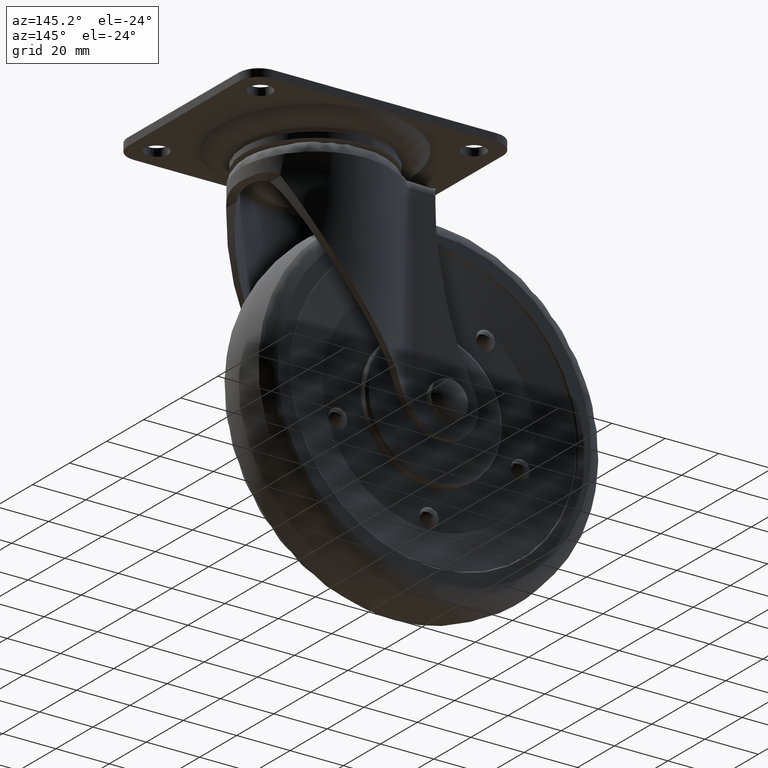
[diagram: clean part render]
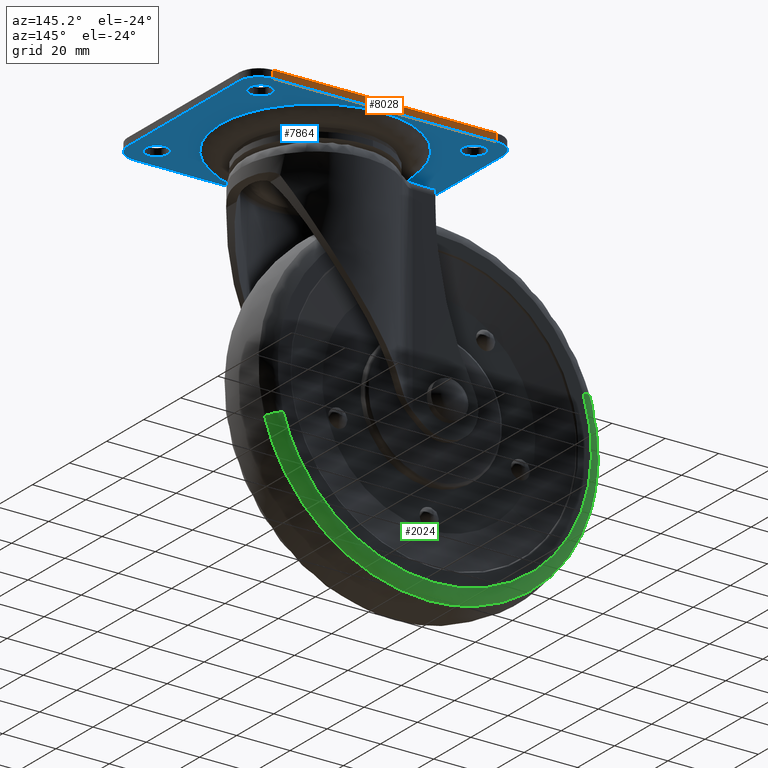
[diagram: same view with three faces highlighted in distinct colors, each labeled with its STEP entity id]
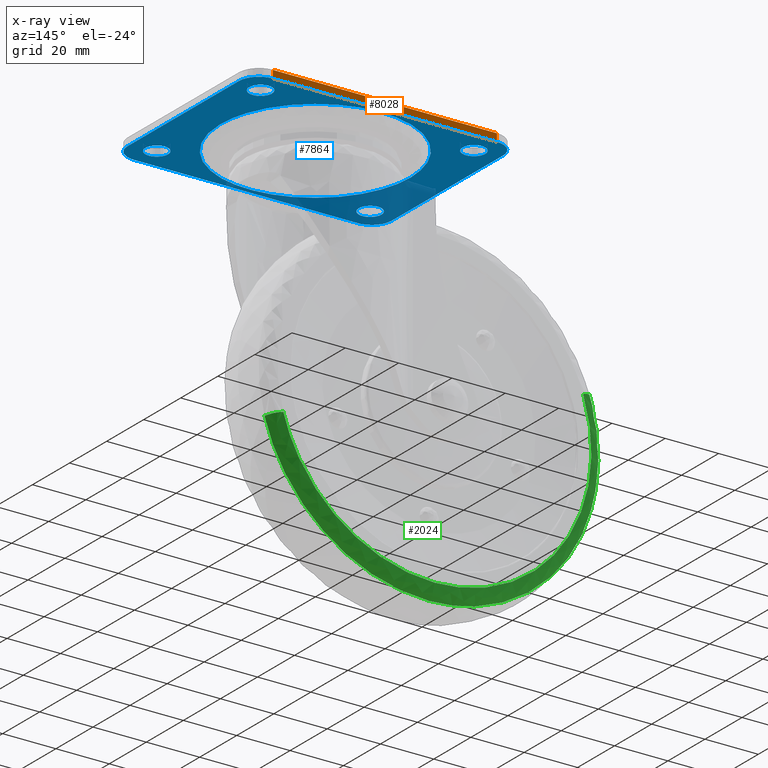
[diagram: x-ray of the same camera — body ghosted, the three highlighted faces saturated]
A machine part, auxiliary view with three faces highlighted in distinct colors.
The next image is the same camera in x-ray (body ghosted, the three faces saturated) — at least one of them is partly hidden behind the body in this view.
Their STEP definitions:

[orange] entity #8028 — the highlighted face is a freeform B-spline surface patch.
#7618=CARTESIAN_POINT('',(42.0,37.500000000000000,0.0));
#7619=VERTEX_POINT('',#7618);
#7620=CARTESIAN_POINT('',(-42.0,37.500000000000000,0.0));
#7621=VERTEX_POINT('',#7620);
#7622=CARTESIAN_POINT('',(42.0,37.500000000000000,0.0));
#7623=CARTESIAN_POINT('',(-42.0,37.500000000000000,0.0));
#7624=QUASI_UNIFORM_CURVE('',1,(#7622,#7623),.UNSPECIFIED.,.F.,.U.);
#7625=EDGE_CURVE('',#7619,#7621,#7624,.T.);
#7744=CARTESIAN_POINT('',(42.0,37.500000000000000,-2.899614999999910));
#7745=VERTEX_POINT('',#7744);
#7746=CARTESIAN_POINT('',(-42.0,37.500000000000000,-2.899614999999910));
#7747=VERTEX_POINT('',#7746);
#7748=CARTESIAN_POINT('',(42.0,37.500000000000000,-2.899614999999910));
#7749=CARTESIAN_POINT('',(-42.0,37.500000000000000,-2.899614999999910));
#7750=QUASI_UNIFORM_CURVE('',1,(#7748,#7749),.UNSPECIFIED.,.F.,.U.);
#7751=EDGE_CURVE('',#7745,#7747,#7750,.T.);
#7886=CARTESIAN_POINT('',(42.0,37.500000000000000,-2.899614999999910));
#7887=CARTESIAN_POINT('',(42.0,37.500000000000000,0.0));
#7888=QUASI_UNIFORM_CURVE('',1,(#7886,#7887),.UNSPECIFIED.,.F.,.U.);
#7889=EDGE_CURVE('',#7745,#7619,#7888,.T.);
#8007=CARTESIAN_POINT('',(-42.0,37.500000000000000,-2.899614999999910));
#8008=CARTESIAN_POINT('',(-42.0,37.500000000000000,0.0));
#8009=QUASI_UNIFORM_CURVE('',1,(#8007,#8008),.UNSPECIFIED.,.F.,.U.);
#8010=EDGE_CURVE('',#7747,#7621,#8009,.T.);
#8017=CARTESIAN_POINT('',(-46.195799837191707,37.500000000000000,-3.044450818068911));
#8018=CARTESIAN_POINT('',(-46.195799837191707,37.500000000000000,0.144835843993579));
#8019=CARTESIAN_POINT('',(46.195802090247277,37.500000000000000,-3.044450818068911));
#8020=CARTESIAN_POINT('',(46.195802090247277,37.500000000000000,0.144835843993579));
#8021=B_SPLINE_SURFACE_WITH_KNOTS('',1,1,((#8017,#8019),(#8018,#8020)),.UNSPECIFIED.,.F.,.F.,.U.,(2,2),(2,2),(0.0,3.189286662062490),(0.0,92.391601927438998),.UNSPECIFIED.);
#8022=ORIENTED_EDGE('',*,*,#7625,.F.);
#8023=ORIENTED_EDGE('',*,*,#7889,.F.);
#8024=ORIENTED_EDGE('',*,*,#7751,.T.);
#8025=ORIENTED_EDGE('',*,*,#8010,.T.);
#8026=EDGE_LOOP('',(#8022,#8023,#8024,#8025));
#8027=FACE_OUTER_BOUND('',#8026,.T.);
#8028=ADVANCED_FACE('',(#8027),#8021,.T.);

[blue] entity #7864 — the highlighted face is a freeform B-spline surface patch.
#5863=CARTESIAN_POINT('',(-39.740543706434572,32.242072893259767,-2.899614999999910));
#5864=VERTEX_POINT('',#5863);
#5870=CARTESIAN_POINT('',(-35.750000000000007,28.0,-2.899614999999910));
#5871=VERTEX_POINT('',#5870);
#5872=CARTESIAN_POINT('',(-35.750000000000007,28.0,-2.899614999999910));
#5873=CARTESIAN_POINT('',(-35.750000000000000,31.998000783325136,-2.899614999999910));
#5874=CARTESIAN_POINT('',(-39.740543706434572,32.242072893259767,-2.899614999999911));
#5882=(BOUNDED_CURVE()B_SPLINE_CURVE(2,(#5872,#5873,#5874),.UNSPECIFIED.,.F.,.U.)B_SPLINE_CURVE_WITH_KNOTS((3,3),(0.500000000000000,0.739332962197853),.UNSPECIFIED.)CURVE()GEOMETRIC_REPRESENTATION_ITEM()RATIONAL_B_SPLINE_CURVE((1.0,0.719603993334849,0.976072041578655))REPRESENTATION_ITEM(''));
#5883=EDGE_CURVE('',#5871,#5864,#5882,.T.);
#5885=CARTESIAN_POINT('',(-40.501645497471713,23.779709512975870,-2.899614999999911));
#5886=VERTEX_POINT('',#5885);
#5887=CARTESIAN_POINT('',(-40.501645497471706,23.779709512975867,-2.899614999999911));
#5888=CARTESIAN_POINT('',(-40.251702508703019,23.750000000000004,-2.899614999999910));
#5889=CARTESIAN_POINT('',(-40.0,23.750000000000000,-2.899614999999910));
#5890=CARTESIAN_POINT('',(-35.750000000000007,23.750000000000011,-2.899614999999911));
#5891=CARTESIAN_POINT('',(-35.750000000000007,28.0,-2.899614999999910));
#5899=(BOUNDED_CURVE()B_SPLINE_CURVE(2,(#5887,#5888,#5889,#5890,#5891),.UNSPECIFIED.,.F.,.U.)B_SPLINE_CURVE_WITH_KNOTS((3,2,3),(0.229562473501189,0.250000000000000,0.500000000000000),.UNSPECIFIED.)CURVE()GEOMETRIC_REPRESENTATION_ITEM()RATIONAL_B_SPLINE_CURVE((0.956026754159552,0.976055948316712,1.0,0.707106781186548,1.0))REPRESENTATION_ITEM(''));
#5900=EDGE_CURVE('',#5886,#5871,#5899,.T.);
#5944=CARTESIAN_POINT('',(-44.250000000000000,28.0,-2.899614999999910));
#5945=VERTEX_POINT('',#5944);
#5946=CARTESIAN_POINT('',(-44.250000000000000,28.0,-2.899614999999910));
#5947=CARTESIAN_POINT('',(-44.250000000000000,24.225258265031837,-2.899614999999911));
#5948=CARTESIAN_POINT('',(-40.501645497471721,23.779709512975874,-2.899614999999911));
#5956=(BOUNDED_CURVE()B_SPLINE_CURVE(2,(#5946,#5947,#5948),.UNSPECIFIED.,.F.,.U.)B_SPLINE_CURVE_WITH_KNOTS((3,3),(0.0,0.229562473501189),.UNSPECIFIED.)CURVE()GEOMETRIC_REPRESENTATION_ITEM()RATIONAL_B_SPLINE_CURVE((1.0,0.731050832869836,0.956026754159552))REPRESENTATION_ITEM(''));
#5957=EDGE_CURVE('',#5945,#5886,#5956,.T.);
#5959=CARTESIAN_POINT('',(-39.740543706434572,32.242072893259767,-2.899614999999910));
#5960=CARTESIAN_POINT('',(-39.870150755437180,32.249999999999993,-2.899614999999910));
#5961=CARTESIAN_POINT('',(-40.0,32.250000000000000,-2.899614999999910));
#5962=CARTESIAN_POINT('',(-44.250000000000000,32.250000000000000,-2.899614999999911));
#5963=CARTESIAN_POINT('',(-44.250000000000000,28.0,-2.899614999999910));
#5971=(BOUNDED_CURVE()B_SPLINE_CURVE(2,(#5959,#5960,#5961,#5962,#5963),.UNSPECIFIED.,.F.,.U.)B_SPLINE_CURVE_WITH_KNOTS((3,2,3),(0.739332962197853,0.750000000000000,1.0),.UNSPECIFIED.)CURVE()GEOMETRIC_REPRESENTATION_ITEM()RATIONAL_B_SPLINE_CURVE((0.976072041578655,0.987502787851698,1.0,0.707106781186548,1.0))REPRESENTATION_ITEM(''));
#5972=EDGE_CURVE('',#5864,#5945,#5971,.T.);
#6265=CARTESIAN_POINT('',(40.259456293565442,32.242072893259767,-2.899614999999910));
#6266=VERTEX_POINT('',#6265);
#6272=CARTESIAN_POINT('',(44.250000000000000,28.0,-2.899614999999910));
#6273=VERTEX_POINT('',#6272);
#6274=CARTESIAN_POINT('',(44.250000000000000,28.0,-2.899614999999910));
#6275=CARTESIAN_POINT('',(44.250000000000000,31.998000783325136,-2.899614999999910));
#6276=CARTESIAN_POINT('',(40.259456293565435,32.242072893259767,-2.899614999999911));
#6284=(BOUNDED_CURVE()B_SPLINE_CURVE(2,(#6274,#6275,#6276),.UNSPECIFIED.,.F.,.U.)B_SPLINE_CURVE_WITH_KNOTS((3,3),(0.500000000000000,0.739332962197853),.UNSPECIFIED.)CURVE()GEOMETRIC_REPRESENTATION_ITEM()RATIONAL_B_SPLINE_CURVE((1.0,0.719603993334849,0.976072041578655))REPRESENTATION_ITEM(''));
#6285=EDGE_CURVE('',#6273,#6266,#6284,.T.);
#6287=CARTESIAN_POINT('',(39.498354502528287,23.779709512975870,-2.899614999999910));
#6288=VERTEX_POINT('',#6287);
#6289=CARTESIAN_POINT('',(39.498354502528287,23.779709512975867,-2.899614999999910));
#6290=CARTESIAN_POINT('',(39.748297491296981,23.750000000000004,-2.899614999999909));
#6291=CARTESIAN_POINT('',(40.0,23.750000000000000,-2.899614999999910));
#6292=CARTESIAN_POINT('',(44.250000000000000,23.750000000000011,-2.899614999999911));
#6293=CARTESIAN_POINT('',(44.250000000000000,28.0,-2.899614999999910));
#6301=(BOUNDED_CURVE()B_SPLINE_CURVE(2,(#6289,#6290,#6291,#6292,#6293),.UNSPECIFIED.,.F.,.U.)B_SPLINE_CURVE_WITH_KNOTS((3,2,3),(0.229562473501189,0.250000000000000,0.500000000000000),.UNSPECIFIED.)CURVE()GEOMETRIC_REPRESENTATION_ITEM()RATIONAL_B_SPLINE_CURVE((0.956026754159552,0.976055948316712,1.0,0.707106781186548,1.0))REPRESENTATION_ITEM(''));
#6302=EDGE_CURVE('',#6288,#6273,#6301,.T.);
#6346=CARTESIAN_POINT('',(35.750000000000007,28.0,-2.899614999999910));
#6347=VERTEX_POINT('',#6346);
#6348=CARTESIAN_POINT('',(35.750000000000007,28.0,-2.899614999999910));
#6349=CARTESIAN_POINT('',(35.750000000000014,24.225258265031830,-2.899614999999910));
#6350=CARTESIAN_POINT('',(39.498354502528287,23.779709512975867,-2.899614999999910));
#6358=(BOUNDED_CURVE()B_SPLINE_CURVE(2,(#6348,#6349,#6350),.UNSPECIFIED.,.F.,.U.)B_SPLINE_CURVE_WITH_KNOTS((3,3),(0.0,0.229562473501189),.UNSPECIFIED.)CURVE()GEOMETRIC_REPRESENTATION_ITEM()RATIONAL_B_SPLINE_CURVE((1.0,0.731050832869836,0.956026754159552))REPRESENTATION_ITEM(''));
#6359=EDGE_CURVE('',#6347,#6288,#6358,.T.);
#6361=CARTESIAN_POINT('',(40.259456293565435,32.242072893259767,-2.899614999999910));
#6362=CARTESIAN_POINT('',(40.129849244562806,32.249999999999993,-2.899614999999910));
#6363=CARTESIAN_POINT('',(40.0,32.250000000000000,-2.899614999999910));
#6364=CARTESIAN_POINT('',(35.750000000000007,32.250000000000000,-2.899614999999911));
#6365=CARTESIAN_POINT('',(35.750000000000007,28.0,-2.899614999999910));
#6373=(BOUNDED_CURVE()B_SPLINE_CURVE(2,(#6361,#6362,#6363,#6364,#6365),.UNSPECIFIED.,.F.,.U.)B_SPLINE_CURVE_WITH_KNOTS((3,2,3),(0.739332962197853,0.750000000000000,1.0),.UNSPECIFIED.)CURVE()GEOMETRIC_REPRESENTATION_ITEM()RATIONAL_B_SPLINE_CURVE((0.976072041578655,0.987502787851698,1.0,0.707106781186548,1.0))REPRESENTATION_ITEM(''));
#6374=EDGE_CURVE('',#6266,#6347,#6373,.T.);
#6451=CARTESIAN_POINT('',(40.259456293565442,-23.757927106740230,-2.899614999999910));
#6452=VERTEX_POINT('',#6451);
#6458=CARTESIAN_POINT('',(44.250000000000000,-28.0,-2.899614999999910));
#6459=VERTEX_POINT('',#6458);
#6460=CARTESIAN_POINT('',(44.250000000000000,-28.0,-2.899614999999910));
#6461=CARTESIAN_POINT('',(44.250000000000000,-24.001999216674875,-2.899614999999910));
#6462=CARTESIAN_POINT('',(40.259456293565435,-23.757927106740230,-2.899614999999911));
#6470=(BOUNDED_CURVE()B_SPLINE_CURVE(2,(#6460,#6461,#6462),.UNSPECIFIED.,.F.,.U.)B_SPLINE_CURVE_WITH_KNOTS((3,3),(0.500000000000000,0.739332962197853),.UNSPECIFIED.)CURVE()GEOMETRIC_REPRESENTATION_ITEM()RATIONAL_B_SPLINE_CURVE((1.0,0.719603993334849,0.976072041578655))REPRESENTATION_ITEM(''));
#6471=EDGE_CURVE('',#6459,#6452,#6470,.T.);
#6473=CARTESIAN_POINT('',(39.498354502528287,-32.220290487024130,-2.899614999999910));
#6474=VERTEX_POINT('',#6473);
#6475=CARTESIAN_POINT('',(39.498354502528287,-32.220290487024130,-2.899614999999910));
#6476=CARTESIAN_POINT('',(39.748297491296981,-32.250000000000014,-2.899614999999910));
#6477=CARTESIAN_POINT('',(40.0,-32.250000000000000,-2.899614999999910));
#6478=CARTESIAN_POINT('',(44.250000000000000,-32.250000000000000,-2.899614999999911));
#6479=CARTESIAN_POINT('',(44.250000000000000,-28.0,-2.899614999999910));
#6487=(BOUNDED_CURVE()B_SPLINE_CURVE(2,(#6475,#6476,#6477,#6478,#6479),.UNSPECIFIED.,.F.,.U.)B_SPLINE_CURVE_WITH_KNOTS((3,2,3),(0.229562473501188,0.250000000000000,0.500000000000000),.UNSPECIFIED.)CURVE()GEOMETRIC_REPRESENTATION_ITEM()RATIONAL_B_SPLINE_CURVE((0.956026754159552,0.976055948316711,1.0,0.707106781186548,1.0))REPRESENTATION_ITEM(''));
#6488=EDGE_CURVE('',#6474,#6459,#6487,.T.);
#6532=CARTESIAN_POINT('',(35.750000000000007,-28.0,-2.899614999999910));
#6533=VERTEX_POINT('',#6532);
#6534=CARTESIAN_POINT('',(35.750000000000007,-28.0,-2.899614999999910));
#6535=CARTESIAN_POINT('',(35.750000000000014,-31.774741734968156,-2.899614999999910));
#6536=CARTESIAN_POINT('',(39.498354502528287,-32.220290487024130,-2.899614999999910));
#6544=(BOUNDED_CURVE()B_SPLINE_CURVE(2,(#6534,#6535,#6536),.UNSPECIFIED.,.F.,.U.)B_SPLINE_CURVE_WITH_KNOTS((3,3),(0.0,0.229562473501188),.UNSPECIFIED.)CURVE()GEOMETRIC_REPRESENTATION_ITEM()RATIONAL_B_SPLINE_CURVE((1.0,0.731050832869836,0.956026754159551))REPRESENTATION_ITEM(''));
#6545=EDGE_CURVE('',#6533,#6474,#6544,.T.);
#6547=CARTESIAN_POINT('',(40.259456293565442,-23.757927106740230,-2.899614999999910));
#6548=CARTESIAN_POINT('',(40.129849244562813,-23.750000000000000,-2.899614999999910));
#6549=CARTESIAN_POINT('',(40.0,-23.750000000000000,-2.899614999999910));
#6550=CARTESIAN_POINT('',(35.750000000000007,-23.750000000000011,-2.899614999999911));
#6551=CARTESIAN_POINT('',(35.750000000000007,-28.0,-2.899614999999910));
#6559=(BOUNDED_CURVE()B_SPLINE_CURVE(2,(#6547,#6548,#6549,#6550,#6551),.UNSPECIFIED.,.F.,.U.)B_SPLINE_CURVE_WITH_KNOTS((3,2,3),(0.739332962197853,0.750000000000000,1.0),.UNSPECIFIED.)CURVE()GEOMETRIC_REPRESENTATION_ITEM()RATIONAL_B_SPLINE_CURVE((0.976072041578654,0.987502787851698,1.0,0.707106781186548,1.0))REPRESENTATION_ITEM(''));
#6560=EDGE_CURVE('',#6452,#6533,#6559,.T.);
#6637=CARTESIAN_POINT('',(-39.740543706434572,-23.757927106740230,-2.899614999999910));
#6638=VERTEX_POINT('',#6637);
#6644=CARTESIAN_POINT('',(-35.750000000000007,-28.0,-2.899614999999910));
#6645=VERTEX_POINT('',#6644);
#6646=CARTESIAN_POINT('',(-35.750000000000007,-28.0,-2.899614999999910));
#6647=CARTESIAN_POINT('',(-35.750000000000000,-24.001999216674875,-2.899614999999910));
#6648=CARTESIAN_POINT('',(-39.740543706434572,-23.757927106740230,-2.899614999999911));
#6656=(BOUNDED_CURVE()B_SPLINE_CURVE(2,(#6646,#6647,#6648),.UNSPECIFIED.,.F.,.U.)B_SPLINE_CURVE_WITH_KNOTS((3,3),(0.500000000000000,0.739332962197853),.UNSPECIFIED.)CURVE()GEOMETRIC_REPRESENTATION_ITEM()RATIONAL_B_SPLINE_CURVE((1.0,0.719603993334849,0.976072041578655))REPRESENTATION_ITEM(''));
#6657=EDGE_CURVE('',#6645,#6638,#6656,.T.);
#6659=CARTESIAN_POINT('',(-40.501645497471713,-32.220290487024130,-2.899614999999910));
#6660=VERTEX_POINT('',#6659);
#6661=CARTESIAN_POINT('',(-40.501645497471706,-32.220290487024130,-2.899614999999910));
#6662=CARTESIAN_POINT('',(-40.251702508703019,-32.250000000000007,-2.899614999999909));
#6663=CARTESIAN_POINT('',(-40.0,-32.250000000000000,-2.899614999999910));
#6664=CARTESIAN_POINT('',(-35.750000000000007,-32.250000000000000,-2.899614999999911));
#6665=CARTESIAN_POINT('',(-35.750000000000007,-28.0,-2.899614999999910));
#6673=(BOUNDED_CURVE()B_SPLINE_CURVE(2,(#6661,#6662,#6663,#6664,#6665),.UNSPECIFIED.,.F.,.U.)B_SPLINE_CURVE_WITH_KNOTS((3,2,3),(0.229562473501189,0.250000000000000,0.500000000000000),.UNSPECIFIED.)CURVE()GEOMETRIC_REPRESENTATION_ITEM()RATIONAL_B_SPLINE_CURVE((0.956026754159552,0.976055948316712,1.0,0.707106781186548,1.0))REPRESENTATION_ITEM(''));
#6674=EDGE_CURVE('',#6660,#6645,#6673,.T.);
#6718=CARTESIAN_POINT('',(-44.250000000000000,-28.0,-2.899614999999910));
#6719=VERTEX_POINT('',#6718);
#6720=CARTESIAN_POINT('',(-44.250000000000000,-28.0,-2.899614999999910));
#6721=CARTESIAN_POINT('',(-44.250000000000007,-31.774741734968170,-2.899614999999910));
#6722=CARTESIAN_POINT('',(-40.501645497471706,-32.220290487024130,-2.899614999999910));
#6730=(BOUNDED_CURVE()B_SPLINE_CURVE(2,(#6720,#6721,#6722),.UNSPECIFIED.,.F.,.U.)B_SPLINE_CURVE_WITH_KNOTS((3,3),(0.0,0.229562473501189),.UNSPECIFIED.)CURVE()GEOMETRIC_REPRESENTATION_ITEM()RATIONAL_B_SPLINE_CURVE((1.0,0.731050832869836,0.956026754159552))REPRESENTATION_ITEM(''));
#6731=EDGE_CURVE('',#6719,#6660,#6730,.T.);
#6733=CARTESIAN_POINT('',(-39.740543706434572,-23.757927106740237,-2.899614999999910));
#6734=CARTESIAN_POINT('',(-39.870150755437180,-23.749999999999996,-2.899614999999910));
#6735=CARTESIAN_POINT('',(-40.0,-23.750000000000000,-2.899614999999910));
#6736=CARTESIAN_POINT('',(-44.250000000000000,-23.750000000000011,-2.899614999999911));
#6737=CARTESIAN_POINT('',(-44.250000000000000,-28.0,-2.899614999999910));
#6745=(BOUNDED_CURVE()B_SPLINE_CURVE(2,(#6733,#6734,#6735,#6736,#6737),.UNSPECIFIED.,.F.,.U.)B_SPLINE_CURVE_WITH_KNOTS((3,2,3),(0.739332962197853,0.750000000000000,1.0),.UNSPECIFIED.)CURVE()GEOMETRIC_REPRESENTATION_ITEM()RATIONAL_B_SPLINE_CURVE((0.976072041578655,0.987502787851698,1.0,0.707106781186548,1.0))REPRESENTATION_ITEM(''));
#6746=EDGE_CURVE('',#6638,#6719,#6745,.T.);
#7391=CARTESIAN_POINT('',(20.398278238410779,29.176535980283781,-2.899615001293549));
#7392=VERTEX_POINT('',#7391);
#7406=CARTESIAN_POINT('',(35.600000097739198,0.0,-2.899614999999925));
#7407=VERTEX_POINT('',#7406);
#7408=CARTESIAN_POINT('',(20.398278238410775,29.176535980283788,-2.899615001293548));
#7409=CARTESIAN_POINT('',(35.600000097739205,18.548511036898010,-2.899614999999925));
#7410=CARTESIAN_POINT('',(35.600000097739198,0.0,-2.899614999999925));
#7418=(BOUNDED_CURVE()B_SPLINE_CURVE(2,(#7408,#7409,#7410),.UNSPECIFIED.,.F.,.U.)B_SPLINE_CURVE_WITH_KNOTS((3,3),(0.348488271146384,0.500000000000000),.UNSPECIFIED.)CURVE()GEOMETRIC_REPRESENTATION_ITEM()RATIONAL_B_SPLINE_CURVE((0.860141114567462,0.822492968192293,1.0))REPRESENTATION_ITEM(''));
#7419=EDGE_CURVE('',#7392,#7407,#7418,.T.);
#7421=CARTESIAN_POINT('',(-35.600000097739198,0.0,-2.899614999999925));
#7422=VERTEX_POINT('',#7421);
#7423=CARTESIAN_POINT('',(35.600000097739198,0.0,-2.899614999999925));
#7424=CARTESIAN_POINT('',(35.600000097739191,-35.600000097739191,-2.899614999999925));
#7425=CARTESIAN_POINT('',(0.0,-35.600000097739198,-2.899614999999925));
#7426=CARTESIAN_POINT('',(-35.600000097739191,-35.600000097739191,-2.899614999999925));
#7427=CARTESIAN_POINT('',(-35.600000097739198,0.0,-2.899614999999925));
#7435=(BOUNDED_CURVE()B_SPLINE_CURVE(2,(#7423,#7424,#7425,#7426,#7427),.UNSPECIFIED.,.F.,.U.)B_SPLINE_CURVE_WITH_KNOTS((3,2,3),(0.500000000000000,0.750000000000000,1.0),.UNSPECIFIED.)CURVE()GEOMETRIC_REPRESENTATION_ITEM()RATIONAL_B_SPLINE_CURVE((1.0,0.707106781186548,1.0,0.707106781186548,1.0))REPRESENTATION_ITEM(''));
#7436=EDGE_CURVE('',#7407,#7422,#7435,.T.);
#7438=CARTESIAN_POINT('',(-30.295403634390819,18.696216877482090,-2.899615001291566));
#7439=VERTEX_POINT('',#7438);
#7440=CARTESIAN_POINT('',(-35.600000097739198,0.0,-2.899614999999925));
#7441=CARTESIAN_POINT('',(-35.600000097739198,10.100633503636523,-2.899614999999924));
#7442=CARTESIAN_POINT('',(-30.295403634390819,18.696216877482097,-2.899615001291566));
#7450=(BOUNDED_CURVE()B_SPLINE_CURVE(2,(#7440,#7441,#7442),.UNSPECIFIED.,.F.,.U.)B_SPLINE_CURVE_WITH_KNOTS((3,3),(0.0,0.089762955611421),.UNSPECIFIED.)CURVE()GEOMETRIC_REPRESENTATION_ITEM()RATIONAL_B_SPLINE_CURVE((1.0,0.894836156003047,0.865190851691093))REPRESENTATION_ITEM(''));
#7451=EDGE_CURVE('',#7422,#7439,#7450,.T.);
#7540=CARTESIAN_POINT('',(-30.295403634390819,18.696216877482097,-2.899615001291566));
#7541=CARTESIAN_POINT('',(-19.863563843784789,35.600000097739205,-2.899614999999924));
#7542=CARTESIAN_POINT('',(0.0,35.600000097739198,-2.899614999999925));
#7543=CARTESIAN_POINT('',(11.210520834509976,35.600000097739198,-2.899614999999925));
#7544=CARTESIAN_POINT('',(20.398278238410775,29.176535980283788,-2.899615001293548));
#7552=(BOUNDED_CURVE()B_SPLINE_CURVE(2,(#7540,#7541,#7542,#7543,#7544),.UNSPECIFIED.,.F.,.U.)B_SPLINE_CURVE_WITH_KNOTS((3,2,3),(0.089762955611421,0.250000000000000,0.348488271146384),.UNSPECIFIED.)CURVE()GEOMETRIC_REPRESENTATION_ITEM()RATIONAL_B_SPLINE_CURVE((0.865190851691093,0.812270625183501,1.0,0.884613812994254,0.860141114567462))REPRESENTATION_ITEM(''));
#7553=EDGE_CURVE('',#7439,#7392,#7552,.T.);
#7739=CARTESIAN_POINT('',(-54.445049808118803,41.246249854635437,-2.899614999999925));
#7740=CARTESIAN_POINT('',(54.445052463505732,41.246249854635437,-2.899614999999925));
#7741=CARTESIAN_POINT('',(-54.445049808118803,-41.246251866292198,-2.899614999999925));
#7742=CARTESIAN_POINT('',(54.445052463505732,-41.246251866292198,-2.899614999999925));
#7743=B_SPLINE_SURFACE_WITH_KNOTS('',1,1,((#7739,#7741),(#7740,#7742)),.UNSPECIFIED.,.F.,.F.,.U.,(2,2),(2,2),(0.0,108.890102271624500),(0.0,82.492501720927635),.UNSPECIFIED.);
#7744=CARTESIAN_POINT('',(42.0,37.500000000000000,-2.899614999999910));
#7745=VERTEX_POINT('',#7744);
#7746=CARTESIAN_POINT('',(-42.0,37.500000000000000,-2.899614999999910));
#7747=VERTEX_POINT('',#7746);
#7748=CARTESIAN_POINT('',(42.0,37.500000000000000,-2.899614999999910));
#7749=CARTESIAN_POINT('',(-42.0,37.500000000000000,-2.899614999999910));
#7750=QUASI_UNIFORM_CURVE('',1,(#7748,#7749),.UNSPECIFIED.,.F.,.U.);
#7751=EDGE_CURVE('',#7745,#7747,#7750,.T.);
#7752=ORIENTED_EDGE('',*,*,#7751,.F.);
#7753=CARTESIAN_POINT('',(49.500000000000000,30.0,-2.899614999999910));
#7754=VERTEX_POINT('',#7753);
#7755=CARTESIAN_POINT('',(49.500000000000000,30.0,-2.899614999999910));
#7756=CARTESIAN_POINT('',(49.500000000000000,37.500000000000000,-2.899614999999910));
#7757=CARTESIAN_POINT('',(42.0,37.500000000000000,-2.899614999999910));
#7765=(BOUNDED_CURVE()B_SPLINE_CURVE(2,(#7755,#7756,#7757),.UNSPECIFIED.,.F.,.U.)CURVE()GEOMETRIC_REPRESENTATION_ITEM()QUASI_UNIFORM_CURVE()RATIONAL_B_SPLINE_CURVE((1.0,0.707106781186547,1.0))REPRESENTATION_ITEM(''));
#7766=EDGE_CURVE('',#7754,#7745,#7765,.T.);
#7767=ORIENTED_EDGE('',*,*,#7766,.F.);
#7768=CARTESIAN_POINT('',(49.500000000000000,-30.0,-2.899614999999910));
#7769=VERTEX_POINT('',#7768);
#7770=CARTESIAN_POINT('',(49.500000000000000,-30.0,-2.899614999999910));
#7771=CARTESIAN_POINT('',(49.500000000000000,30.0,-2.899614999999910));
#7772=QUASI_UNIFORM_CURVE('',1,(#7770,#7771),.UNSPECIFIED.,.F.,.U.);
#7773=EDGE_CURVE('',#7769,#7754,#7772,.T.);
#7774=ORIENTED_EDGE('',*,*,#7773,.F.);
#7775=CARTESIAN_POINT('',(42.0,-37.500000000000000,-2.899614999999910));
#7776=VERTEX_POINT('',#7775);
#7777=CARTESIAN_POINT('',(42.0,-37.500000000000000,-2.899614999999910));
#7778=CARTESIAN_POINT('',(49.500000000000000,-37.500000000000000,-2.899614999999910));
#7779=CARTESIAN_POINT('',(49.500000000000000,-30.0,-2.899614999999910));
#7787=(BOUNDED_CURVE()B_SPLINE_CURVE(2,(#7777,#7778,#7779),.UNSPECIFIED.,.F.,.U.)CURVE()GEOMETRIC_REPRESENTATION_ITEM()QUASI_UNIFORM_CURVE()RATIONAL_B_SPLINE_CURVE((1.0,0.707106781186547,1.0))REPRESENTATION_ITEM(''));
#7788=EDGE_CURVE('',#7776,#7769,#7787,.T.);
#7789=ORIENTED_EDGE('',*,*,#7788,.F.);
#7790=CARTESIAN_POINT('',(-42.0,-37.500000000000000,-2.899614999999910));
#7791=VERTEX_POINT('',#7790);
#7792=CARTESIAN_POINT('',(-42.0,-37.500000000000000,-2.899614999999910));
#7793=CARTESIAN_POINT('',(42.0,-37.500000000000000,-2.899614999999910));
#7794=QUASI_UNIFORM_CURVE('',1,(#7792,#7793),.UNSPECIFIED.,.F.,.U.);
#7795=EDGE_CURVE('',#7791,#7776,#7794,.T.);
#7796=ORIENTED_EDGE('',*,*,#7795,.F.);
#7797=CARTESIAN_POINT('',(-49.500000000000000,-30.0,-2.899614999999910));
#7798=VERTEX_POINT('',#7797);
#7799=CARTESIAN_POINT('',(-49.500000000000000,-30.0,-2.899614999999910));
#7800=CARTESIAN_POINT('',(-49.500000000000000,-37.500000000000000,-2.899614999999910));
#7801=CARTESIAN_POINT('',(-42.0,-37.500000000000000,-2.899614999999910));
#7809=(BOUNDED_CURVE()B_SPLINE_CURVE(2,(#7799,#7800,#7801),.UNSPECIFIED.,.F.,.U.)CURVE()GEOMETRIC_REPRESENTATION_ITEM()QUASI_UNIFORM_CURVE()RATIONAL_B_SPLINE_CURVE((1.0,0.707106781186547,1.0))REPRESENTATION_ITEM(''));
#7810=EDGE_CURVE('',#7798,#7791,#7809,.T.);
#7811=ORIENTED_EDGE('',*,*,#7810,.F.);
#7812=CARTESIAN_POINT('',(-49.500000000000000,30.0,-2.899614999999910));
#7813=VERTEX_POINT('',#7812);
#7814=CARTESIAN_POINT('',(-49.500000000000000,30.0,-2.899614999999910));
#7815=CARTESIAN_POINT('',(-49.500000000000000,-30.0,-2.899614999999910));
#7816=QUASI_UNIFORM_CURVE('',1,(#7814,#7815),.UNSPECIFIED.,.F.,.U.);
#7817=EDGE_CURVE('',#7813,#7798,#7816,.T.);
#7818=ORIENTED_EDGE('',*,*,#7817,.F.);
#7819=CARTESIAN_POINT('',(-42.0,37.500000000000000,-2.899614999999910));
#7820=CARTESIAN_POINT('',(-49.500000000000000,37.500000000000000,-2.899614999999910));
#7821=CARTESIAN_POINT('',(-49.500000000000000,30.0,-2.899614999999910));
#7829=(BOUNDED_CURVE()B_SPLINE_CURVE(2,(#7819,#7820,#7821),.UNSPECIFIED.,.F.,.U.)CURVE()GEOMETRIC_REPRESENTATION_ITEM()QUASI_UNIFORM_CURVE()RATIONAL_B_SPLINE_CURVE((1.0,0.707106781186547,1.0))REPRESENTATION_ITEM(''));
#7830=EDGE_CURVE('',#7747,#7813,#7829,.T.);
#7831=ORIENTED_EDGE('',*,*,#7830,.F.);
#7832=EDGE_LOOP('',(#7752,#7767,#7774,#7789,#7796,#7811,#7818,#7831));
#7833=FACE_OUTER_BOUND('',#7832,.T.);
#7834=ORIENTED_EDGE('',*,*,#7436,.F.);
#7835=ORIENTED_EDGE('',*,*,#7419,.F.);
#7836=ORIENTED_EDGE('',*,*,#7553,.F.);
#7837=ORIENTED_EDGE('',*,*,#7451,.F.);
#7838=EDGE_LOOP('',(#7834,#7835,#7836,#7837));
#7839=FACE_BOUND('',#7838,.T.);
#7840=ORIENTED_EDGE('',*,*,#6657,.T.);
#7841=ORIENTED_EDGE('',*,*,#6746,.T.);
#7842=ORIENTED_EDGE('',*,*,#6731,.T.);
#7843=ORIENTED_EDGE('',*,*,#6674,.T.);
#7844=EDGE_LOOP('',(#7840,#7841,#7842,#7843));
#7845=FACE_BOUND('',#7844,.T.);
#7846=ORIENTED_EDGE('',*,*,#6471,.T.);
#7847=ORIENTED_EDGE('',*,*,#6560,.T.);
#7848=ORIENTED_EDGE('',*,*,#6545,.T.);
#7849=ORIENTED_EDGE('',*,*,#6488,.T.);
#7850=EDGE_LOOP('',(#7846,#7847,#7848,#7849));
#7851=FACE_BOUND('',#7850,.T.);
#7852=ORIENTED_EDGE('',*,*,#6285,.T.);
#7853=ORIENTED_EDGE('',*,*,#6374,.T.);
#7854=ORIENTED_EDGE('',*,*,#6359,.T.);
#7855=ORIENTED_EDGE('',*,*,#6302,.T.);
#7856=EDGE_LOOP('',(#7852,#7853,#7854,#7855));
#7857=FACE_BOUND('',#7856,.T.);
#7858=ORIENTED_EDGE('',*,*,#5883,.T.);
#7859=ORIENTED_EDGE('',*,*,#5972,.T.);
#7860=ORIENTED_EDGE('',*,*,#5957,.T.);
#7861=ORIENTED_EDGE('',*,*,#5900,.T.);
#7862=EDGE_LOOP('',(#7858,#7859,#7860,#7861));
#7863=FACE_BOUND('',#7862,.T.);
#7864=ADVANCED_FACE('',(#7833,#7839,#7845,#7851,#7857,#7863),#7743,.T.);

[green] entity #2024 — the highlighted face is a freeform B-spline surface patch.
#1804=CARTESIAN_POINT('',(20.724277847763659,12.500000000000000,-100.818508227404100));
#1805=VERTEX_POINT('',#1804);
#1823=CARTESIAN_POINT('',(-91.735312747736586,12.500000000000000,-66.262954606211594));
#1824=VERTEX_POINT('',#1823);
#1838=CARTESIAN_POINT('',(-96.252683739758837,8.999999991805483,-64.732151132600890));
#1839=VERTEX_POINT('',#1838);
#1840=CARTESIAN_POINT('',(-91.735312747736586,12.499999999999995,-66.262954606211594));
#1841=CARTESIAN_POINT('',(-95.210213528608250,12.499999989199820,-65.085413484834049));
#1842=CARTESIAN_POINT('',(-96.252683739758837,8.999999991805481,-64.732151132600890));
#1850=(BOUNDED_CURVE()B_SPLINE_CURVE(2,(#1840,#1841,#1842),.UNSPECIFIED.,.F.,.U.)B_SPLINE_CURVE_WITH_KNOTS((3,3),(-1.675555639583883,-0.313547309906123),.UNSPECIFIED.)CURVE()GEOMETRIC_REPRESENTATION_ITEM()RATIONAL_B_SPLINE_CURVE((0.897869643372830,0.725008790079846,0.900657975434856))REPRESENTATION_ITEM(''));
#1851=EDGE_CURVE('',#1824,#1839,#1850,.T.);
#1868=CARTESIAN_POINT('',(25.321804888313579,9.000000000001876,-102.088447212697600));
#1869=VERTEX_POINT('',#1868);
#1885=CARTESIAN_POINT('',(20.724277847763659,12.500000000000002,-100.818508227404050));
#1886=CARTESIAN_POINT('',(24.260837111728627,12.499999986917123,-101.795384370401070));
#1887=CARTESIAN_POINT('',(25.321804888313590,9.000000000001876,-102.088447212697590));
#1895=(BOUNDED_CURVE()B_SPLINE_CURVE(2,(#1885,#1886,#1887),.UNSPECIFIED.,.F.,.U.)B_SPLINE_CURVE_WITH_KNOTS((3,3),(-1.675555638868822,-0.313547313868457),.UNSPECIFIED.)CURVE()GEOMETRIC_REPRESENTATION_ITEM()RATIONAL_B_SPLINE_CURVE((0.877672784577370,0.708700298512220,0.880398394520964))REPRESENTATION_ITEM(''));
#1896=EDGE_CURVE('',#1805,#1869,#1895,.T.);
#1901=CARTESIAN_POINT('',(-91.457905112769978,12.491413429313502,-66.356959850969474));
#1902=CARTESIAN_POINT('',(-110.250949261800370,12.491413429313507,-121.814864963739450));
#1903=CARTESIAN_POINT('',(-54.793044149030422,12.491413429313502,-140.607909112769900));
#1904=CARTESIAN_POINT('',(0.664860963739549,12.491413429313507,-159.400953261800310));
#1905=CARTESIAN_POINT('',(19.457905112769975,12.491413429313502,-103.943048149030320));
#1906=CARTESIAN_POINT('',(19.995753443264121,12.491413429313507,-102.355868262628290));
#1907=CARTESIAN_POINT('',(20.441947041206618,12.491413429313505,-100.740525546184020));
#1908=CARTESIAN_POINT('',(-95.372068588218411,12.733931272477856,-65.030565591196279));
#1909=CARTESIAN_POINT('',(-115.491506997022000,12.733931272477854,-124.402634179414680));
#1910=CARTESIAN_POINT('',(-56.119438408803610,12.733931272477856,-144.522072588218350));
#1911=CARTESIAN_POINT('',(3.252630179414792,12.733931272477854,-164.641510997021920));
#1912=CARTESIAN_POINT('',(23.372068588218411,12.733931272477856,-105.269442408803530));
#1913=CARTESIAN_POINT('',(23.947877715938326,12.733931272477857,-103.570240953471200));
#1914=CARTESIAN_POINT('',(24.425563211753534,12.733931272477857,-101.840888963719880));
#1915=CARTESIAN_POINT('',(-96.327929607892642,8.718931595495667,-64.706652556498213));
#1916=CARTESIAN_POINT('',(-116.771281051394330,8.718931595495667,-125.034582164390860));
#1917=CARTESIAN_POINT('',(-56.443351443501705,8.718931595495667,-145.477933607892570));
#1918=CARTESIAN_POINT('',(3.884578164390946,8.718931595495667,-165.921285051394160));
#1919=CARTESIAN_POINT('',(24.327929607892646,8.718931595495667,-105.593355443501590));
#1920=CARTESIAN_POINT('',(24.913008978557556,8.718931595495667,-103.866797682850160));
#1921=CARTESIAN_POINT('',(25.398384975242458,8.718931595495667,-102.109603979047010));
#1929=(BOUNDED_SURFACE()B_SPLINE_SURFACE(2,2,((#1901,#1908,#1915),(#1902,#1909,#1916),(#1903,#1910,#1917),(#1904,#1911,#1918),(#1905,#1912,#1919),(#1906,#1913,#1920),(#1907,#1914,#1921)),.UNSPECIFIED.,.F.,.F.,.U.)B_SPLINE_SURFACE_WITH_KNOTS((3,2,2,3),(3,3),(0.0,105.537710295520800,211.075420591041590,215.296924976918290),(0.0,7.205191128953644),.UNSPECIFIED.)GEOMETRIC_REPRESENTATION_ITEM()RATIONAL_B_SPLINE_SURFACE(((0.916008420943060,0.706730883359356,0.919075006871438),(0.647715766072819,0.499734200097360,0.649884169777866),(0.916008420943060,0.706730883359356,0.919075006871438),(0.647715766072819,0.499734200097360,0.649884169777866),(0.916008420943060,0.706730883359356,0.919075006871438),(0.905276724982803,0.698451023925173,0.908307383656510),(0.895403563880602,0.690833552614021,0.898401169477272)))REPRESENTATION_ITEM('')SURFACE());
#1930=CARTESIAN_POINT('',(-36.0,12.500000000000000,-143.998502035423600));
#1931=VERTEX_POINT('',#1930);
#1932=CARTESIAN_POINT('',(-36.0,12.500000000000000,-143.998502035423600));
#1933=CARTESIAN_POINT('',(8.797005404124690,12.499999999999998,-143.998502035423570));
#1934=CARTESIAN_POINT('',(20.724277847763663,12.500000000000002,-100.818508227404050));
#1942=(BOUNDED_CURVE()B_SPLINE_CURVE(2,(#1932,#1933,#1934),.UNSPECIFIED.,.F.,.U.)B_SPLINE_CURVE_WITH_KNOTS((3,3),(0.0,0.204616402086333),.UNSPECIFIED.)CURVE()GEOMETRIC_REPRESENTATION_ITEM()RATIONAL_B_SPLINE_CURVE((1.0,0.760276973483625,0.912964052431469))REPRESENTATION_ITEM(''));
#1943=EDGE_CURVE('',#1931,#1805,#1942,.T.);
#1944=ORIENTED_EDGE('',*,*,#1943,.T.);
#1945=ORIENTED_EDGE('',*,*,#1896,.T.);
#1946=CARTESIAN_POINT('',(-36.0,9.0,-148.768198042508400));
#1947=VERTEX_POINT('',#1946);
#1948=CARTESIAN_POINT('',(-36.0,9.0,-148.768198042508400));
#1949=CARTESIAN_POINT('',(12.427821906981745,9.0,-148.768198042508460));
#1950=CARTESIAN_POINT('',(25.321804888313579,9.000000000001876,-102.088447212697590));
#1958=(BOUNDED_CURVE()B_SPLINE_CURVE(2,(#1948,#1949,#1950),.UNSPECIFIED.,.F.,.U.)B_SPLINE_CURVE_WITH_KNOTS((3,3),(0.0,0.204616402087969),.UNSPECIFIED.)CURVE()GEOMETRIC_REPRESENTATION_ITEM()RATIONAL_B_SPLINE_CURVE((1.0,0.760276973481709,0.912964052433909))REPRESENTATION_ITEM(''));
#1959=EDGE_CURVE('',#1947,#1869,#1958,.T.);
#1960=ORIENTED_EDGE('',*,*,#1959,.F.);
#1961=CARTESIAN_POINT('',(-36.799428818936093,8.999999986974384,-148.763175020747810));
#1962=VERTEX_POINT('',#1961);
#1963=CARTESIAN_POINT('',(-36.799428818936086,8.999999986974384,-148.763175020747810));
#1964=CARTESIAN_POINT('',(-36.399730217575254,9.000000000000002,-148.768198042508400));
#1965=CARTESIAN_POINT('',(-36.0,9.0,-148.768198042508400));
#1973=(BOUNDED_CURVE()B_SPLINE_CURVE(2,(#1963,#1964,#1965),.UNSPECIFIED.,.F.,.U.)B_SPLINE_CURVE_WITH_KNOTS((3,3),(0.997784295616294,1.0),.UNSPECIFIED.)CURVE()GEOMETRIC_REPRESENTATION_ITEM()RATIONAL_B_SPLINE_CURVE((0.994854294941021,0.997404140844469,1.0))REPRESENTATION_ITEM(''));
#1974=EDGE_CURVE('',#1962,#1947,#1973,.T.);
#1975=ORIENTED_EDGE('',*,*,#1974,.F.);
#1976=CARTESIAN_POINT('',(-99.463326608531077,8.999999999982023,-80.713700470044898));
#1977=VERTEX_POINT('',#1976);
#1978=CARTESIAN_POINT('',(-99.463326608531077,8.999999999982023,-80.713700470044898));
#1979=CARTESIAN_POINT('',(-99.618194042508492,8.999999999999998,-82.929149092416978));
#1980=CARTESIAN_POINT('',(-99.618194042508492,9.0,-85.150003999999896));
#1981=CARTESIAN_POINT('',(-99.618194042508492,9.0,-147.973729467018640));
#1982=CARTESIAN_POINT('',(-36.799428818936079,8.999999986974384,-148.763175020747840));
#1990=(BOUNDED_CURVE()B_SPLINE_CURVE(2,(#1978,#1979,#1980,#1981,#1982),.UNSPECIFIED.,.F.,.U.)B_SPLINE_CURVE_WITH_KNOTS((3,2,3),(0.737833686535064,0.750000000000000,0.997784295616294),.UNSPECIFIED.)CURVE()GEOMETRIC_REPRESENTATION_ITEM()RATIONAL_B_SPLINE_CURVE((0.972879876386917,0.985746277152646,1.0,0.709702640342079,0.994854294941020))REPRESENTATION_ITEM(''));
#1991=EDGE_CURVE('',#1977,#1962,#1990,.T.);
#1992=ORIENTED_EDGE('',*,*,#1991,.F.);
#1993=CARTESIAN_POINT('',(-96.252683739758837,8.999999991805483,-64.732151132600890));
#1994=CARTESIAN_POINT('',(-98.890247961419007,9.000000000000002,-72.515551468741521));
#1995=CARTESIAN_POINT('',(-99.463326608531077,8.999999999982023,-80.713700470044898));
#2003=(BOUNDED_CURVE()B_SPLINE_CURVE(2,(#1993,#1994,#1995),.UNSPECIFIED.,.F.,.U.)B_SPLINE_CURVE_WITH_KNOTS((3,3),(0.695447761582170,0.737833686535063),.UNSPECIFIED.)CURVE()GEOMETRIC_REPRESENTATION_ITEM()RATIONAL_B_SPLINE_CURVE((0.900068461979623,0.928054934234821,0.972879876386915))REPRESENTATION_ITEM(''));
#2004=EDGE_CURVE('',#1839,#1977,#2003,.T.);
#2005=ORIENTED_EDGE('',*,*,#2004,.F.);
#2006=ORIENTED_EDGE('',*,*,#1851,.F.);
#2007=CARTESIAN_POINT('',(-91.735312747736586,12.500000000000004,-66.262954606211594));
#2008=CARTESIAN_POINT('',(-94.848498035423688,12.499999999999998,-75.449903423051651));
#2009=CARTESIAN_POINT('',(-94.848498035423688,12.500000000000000,-85.150003999999896));
#2010=CARTESIAN_POINT('',(-94.848498035423688,12.500000000000000,-143.998502035423600));
#2011=CARTESIAN_POINT('',(-36.0,12.500000000000000,-143.998502035423600));
#2019=(BOUNDED_CURVE()B_SPLINE_CURVE(2,(#2007,#2008,#2009,#2010,#2011),.UNSPECIFIED.,.F.,.U.)B_SPLINE_CURVE_WITH_KNOTS((3,2,3),(0.695447761692722,0.750000000000000,1.0),.UNSPECIFIED.)CURVE()GEOMETRIC_REPRESENTATION_ITEM()RATIONAL_B_SPLINE_CURVE((0.900068462125613,0.936088077314811,1.0,0.707106781186548,1.0))REPRESENTATION_ITEM(''));
#2020=EDGE_CURVE('',#1824,#1931,#2019,.T.);
#2021=ORIENTED_EDGE('',*,*,#2020,.T.);
#2022=EDGE_LOOP('',(#1944,#1945,#1960,#1975,#1992,#2005,#2006,#2021));
#2023=FACE_OUTER_BOUND('',#2022,.T.);
#2024=ADVANCED_FACE('',(#2023),#1929,.T.);